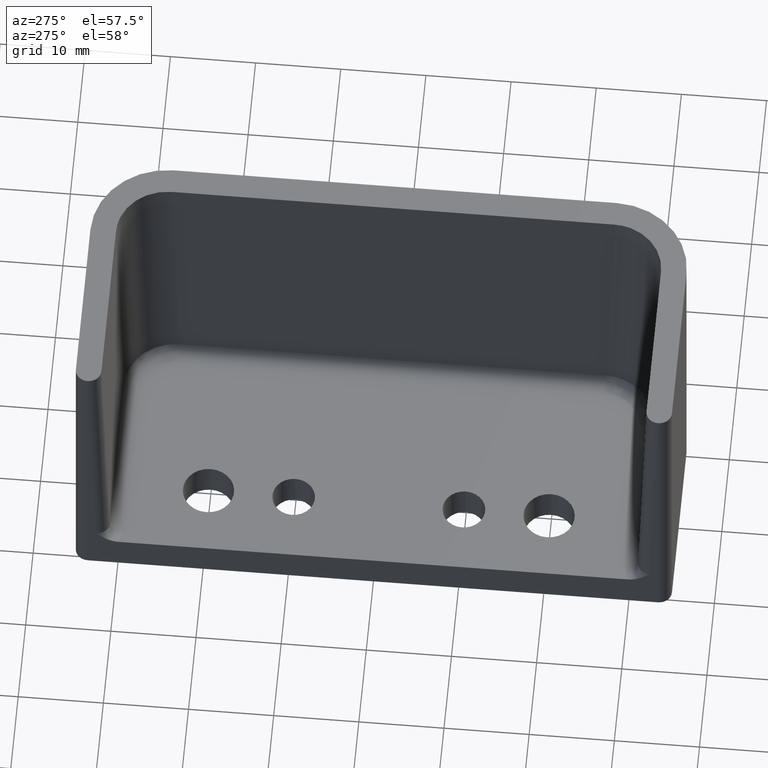
[diagram: clean part render]
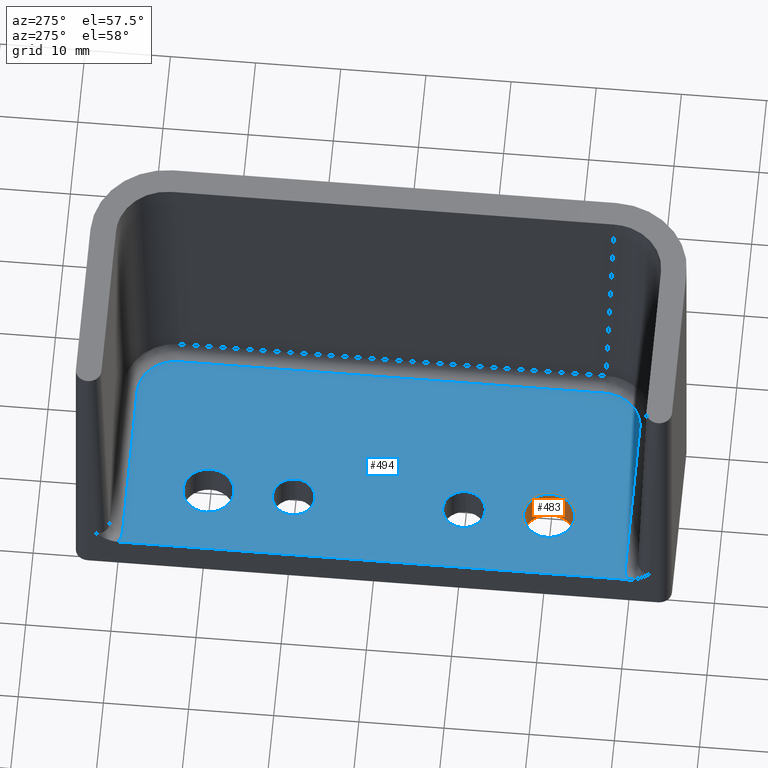
[diagram: same view with the hole feature highlighted: cylindrical wall and planar end face, labeled with their STEP entity ids]
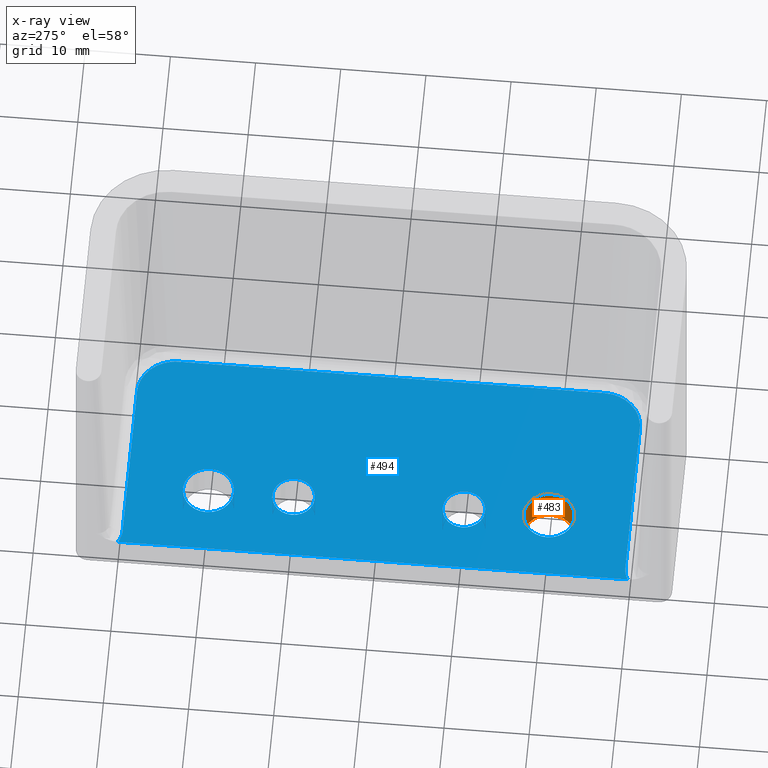
[diagram: x-ray of the same camera — body ghosted, the hole faces saturated]
A machine part, auxiliary view. The highlighted faces form one hole feature of diameter 6 mm: the cylindrical wall (entity #483, orange) and its adjacent planar end face (entity #494, blue) — they share a circular edge in the B-rep.
The next image is the same camera in x-ray (body ghosted, the hole faces saturated) — the bore reads through the body.
Wall:
#111=FACE_BOUND('',#155,.T.);
#123=FACE_OUTER_BOUND('',#154,.T.);
#154=EDGE_LOOP('',(#332));
#155=EDGE_LOOP('',(#333));
#195=CIRCLE('',#519,3.);
#196=CIRCLE('',#520,3.);
#217=VERTEX_POINT('',#736);
#218=VERTEX_POINT('',#738);
#263=EDGE_CURVE('',#217,#217,#195,.T.);
#264=EDGE_CURVE('',#218,#218,#196,.T.);
#332=ORIENTED_EDGE('',*,*,#263,.F.);
#333=ORIENTED_EDGE('',*,*,#264,.F.);
#468=CYLINDRICAL_SURFACE('',#518,3.);
#483=ADVANCED_FACE('',(#123,#111),#468,.F.);
#518=AXIS2_PLACEMENT_3D('',#735,#585,#586);
#519=AXIS2_PLACEMENT_3D('',#737,#587,#588);
#520=AXIS2_PLACEMENT_3D('',#739,#589,#590);
#585=DIRECTION('center_axis',(0.,3.80647894157195E-16,1.));
#586=DIRECTION('ref_axis',(1.,0.,0.));
#587=DIRECTION('center_axis',(0.,0.,1.));
#588=DIRECTION('ref_axis',(1.,0.,0.));
#589=DIRECTION('center_axis',(0.,-3.80647894157195E-16,-1.));
#590=DIRECTION('ref_axis',(1.,0.,0.));
#735=CARTESIAN_POINT('Origin',(-3.24999999999981,-20.0000000000002,-101.103616627397));
#736=CARTESIAN_POINT('',(-6.24999999999981,-20.0000000000001,-19.5));
#737=CARTESIAN_POINT('Origin',(-3.24999999999981,-20.0000000000001,-19.5));
#738=CARTESIAN_POINT('',(-0.24999999999981,-20.0000000000001,-15.));
#739=CARTESIAN_POINT('Origin',(-3.24999999999981,-20.0000000000001,-15.));
End face:
#15=PLANE('',#545);
#28=LINE('',#788,#61);
#32=LINE('',#926,#65);
#33=LINE('',#928,#66);
#37=LINE('',#937,#70);
#61=VECTOR('',#610,19.5);
#65=VECTOR('',#638,19.5);
#66=VECTOR('',#641,50.0358817250325);
#70=VECTOR('',#651,59.8440462666962);
#93=ELLIPSE('',#524,4.50198150160065,4.5);
#96=ELLIPSE('',#531,3.0013210010671,3.);
#99=ELLIPSE('',#536,4.50198150160065,4.5);
#101=ELLIPSE('',#540,3.0013210010671,3.);
#113=FACE_BOUND('',#168,.T.);
#114=FACE_BOUND('',#169,.T.);
#115=FACE_BOUND('',#170,.T.);
#116=FACE_BOUND('',#171,.T.);
#134=FACE_OUTER_BOUND('',#167,.T.);
#167=EDGE_LOOP('',(#372,#373,#374,#375,#376,#377,#378,#379));
#168=EDGE_LOOP('',(#380));
#169=EDGE_LOOP('',(#381));
#170=EDGE_LOOP('',(#382));
#171=EDGE_LOOP('',(#383));
#192=CIRCLE('',#514,2.5);
#194=CIRCLE('',#517,2.5);
#196=CIRCLE('',#520,3.);
#198=CIRCLE('',#523,3.);
#214=VERTEX_POINT('',#728);
#216=VERTEX_POINT('',#733);
#218=VERTEX_POINT('',#738);
#220=VERTEX_POINT('',#743);
#221=VERTEX_POINT('',#775);
#222=VERTEX_POINT('',#776);
#225=VERTEX_POINT('',#784);
#227=VERTEX_POINT('',#819);
#233=VERTEX_POINT('',#872);
#234=VERTEX_POINT('',#874);
#235=VERTEX_POINT('',#907);
#238=VERTEX_POINT('',#912);
#260=EDGE_CURVE('',#214,#214,#192,.T.);
#262=EDGE_CURVE('',#216,#216,#194,.T.);
#264=EDGE_CURVE('',#218,#218,#196,.T.);
#266=EDGE_CURVE('',#220,#220,#198,.T.);
#267=EDGE_CURVE('',#221,#222,#93,.T.);
#273=EDGE_CURVE('',#222,#225,#28,.T.);
#276=EDGE_CURVE('',#225,#227,#96,.T.);
#282=EDGE_CURVE('',#233,#234,#99,.T.);
#287=EDGE_CURVE('',#238,#235,#101,.T.);
#289=EDGE_CURVE('',#235,#233,#32,.T.);
#290=EDGE_CURVE('',#234,#221,#33,.T.);
#295=EDGE_CURVE('',#238,#227,#37,.T.);
#372=ORIENTED_EDGE('',*,*,#276,.F.);
#373=ORIENTED_EDGE('',*,*,#273,.F.);
#374=ORIENTED_EDGE('',*,*,#267,.F.);
#375=ORIENTED_EDGE('',*,*,#290,.F.);
#376=ORIENTED_EDGE('',*,*,#282,.F.);
#377=ORIENTED_EDGE('',*,*,#289,.F.);
#378=ORIENTED_EDGE('',*,*,#287,.F.);
#379=ORIENTED_EDGE('',*,*,#295,.T.);
#380=ORIENTED_EDGE('',*,*,#260,.T.);
#381=ORIENTED_EDGE('',*,*,#262,.T.);
#382=ORIENTED_EDGE('',*,*,#264,.T.);
#383=ORIENTED_EDGE('',*,*,#266,.T.);
#494=ADVANCED_FACE('',(#134,#113,#114,#115,#116),#15,.F.);
#514=AXIS2_PLACEMENT_3D('',#729,#577,#578);
#517=AXIS2_PLACEMENT_3D('',#734,#583,#584);
#520=AXIS2_PLACEMENT_3D('',#739,#589,#590);
#523=AXIS2_PLACEMENT_3D('',#744,#595,#596);
#524=AXIS2_PLACEMENT_3D('',#777,#597,#598);
#531=AXIS2_PLACEMENT_3D('',#832,#613,#614);
#536=AXIS2_PLACEMENT_3D('',#875,#625,#626);
#540=AXIS2_PLACEMENT_3D('',#923,#633,#634);
#545=AXIS2_PLACEMENT_3D('',#936,#649,#650);
#577=DIRECTION('center_axis',(0.,-3.80647894157195E-16,-1.));
#578=DIRECTION('ref_axis',(1.,0.,0.));
#583=DIRECTION('center_axis',(0.,-3.80647894157195E-16,-1.));
#584=DIRECTION('ref_axis',(1.,0.,0.));
#589=DIRECTION('center_axis',(0.,-3.80647894157195E-16,-1.));
#590=DIRECTION('ref_axis',(1.,0.,0.));
#595=DIRECTION('center_axis',(0.,-3.80647894157195E-16,-1.));
#596=DIRECTION('ref_axis',(1.,0.,0.));
#597=DIRECTION('center_axis',(0.,-3.80647894157195E-16,-1.));
#598=DIRECTION('ref_axis',(6.78171004619558E-16,-1.,3.80647894157195E-16));
#610=DIRECTION('',(-1.,0.,0.));
#613=DIRECTION('center_axis',(0.,3.80647894157195E-16,1.));
#614=DIRECTION('ref_axis',(1.74968119191846E-13,1.,-3.80647894157195E-16));
#625=DIRECTION('center_axis',(0.,-3.80647894157195E-16,-1.));
#626=DIRECTION('ref_axis',(6.78171004619558E-16,1.,-3.80647894157195E-16));
#633=DIRECTION('center_axis',(0.,3.80647894157195E-16,1.));
#634=DIRECTION('ref_axis',(-1.84955728532607E-16,-1.,3.80647894157195E-16));
#638=DIRECTION('',(1.,0.,0.));
#641=DIRECTION('',(0.,-1.,3.80647894157195E-16));
#649=DIRECTION('center_axis',(0.,-3.80647894157195E-16,-1.));
#650=DIRECTION('ref_axis',(0.,1.,-3.5527136788005E-16));
#651=DIRECTION('',(0.,-1.,3.80647894157195E-16));
#728=CARTESIAN_POINT('',(-0.749999999999811,-10.0000000000001,-15.));
#729=CARTESIAN_POINT('Origin',(-3.24999999999981,-10.0000000000001,-15.));
#733=CARTESIAN_POINT('',(-0.749999999999811,10.0000000000001,-15.));
#734=CARTESIAN_POINT('Origin',(-3.24999999999981,10.0000000000001,-15.));
#738=CARTESIAN_POINT('',(-0.24999999999981,-20.0000000000001,-15.));
#739=CARTESIAN_POINT('Origin',(-3.24999999999981,-20.0000000000001,-15.));
#743=CARTESIAN_POINT('',(-0.24999999999981,20.0000000000001,-15.));
#744=CARTESIAN_POINT('Origin',(-3.24999999999981,20.0000000000001,-15.));
#775=CARTESIAN_POINT('',(14.2500000000002,-25.0179408625162,-15.));
#776=CARTESIAN_POINT('',(9.75000000000018,-29.5199223641169,-15.));
#777=CARTESIAN_POINT('Origin',(9.75000000000019,-25.0179408625162,-15.));
#784=CARTESIAN_POINT('',(-9.74999999999981,-29.5199223641169,-15.));
#788=CARTESIAN_POINT('',(-11.2499999999998,-29.5199223641169,-15.));
#819=CARTESIAN_POINT('',(-11.2499999999998,-29.9220231333481,-15.));
#832=CARTESIAN_POINT('Origin',(-9.74999999999981,-32.521243365184,-15.));
#872=CARTESIAN_POINT('',(9.75000000000018,29.5199223641169,-15.));
#874=CARTESIAN_POINT('',(14.2500000000002,25.0179408625162,-15.));
#875=CARTESIAN_POINT('Origin',(9.75000000000018,25.0179408625162,-15.));
#907=CARTESIAN_POINT('',(-9.74999999999981,29.5199223641169,-15.));
#912=CARTESIAN_POINT('',(-11.2499999999998,29.9220231333481,-15.));
#923=CARTESIAN_POINT('Origin',(-9.74999999999981,32.521243365184,-15.));
#926=CARTESIAN_POINT('',(-11.2499999999998,29.5199223641169,-15.));
#928=CARTESIAN_POINT('',(14.2500000000002,-15.4880319519764,-15.));
#936=CARTESIAN_POINT('Origin',(-11.2499999999998,-30.9760639039527,-15.));
#937=CARTESIAN_POINT('',(-11.2499999999998,1.2619680480237,-15.));